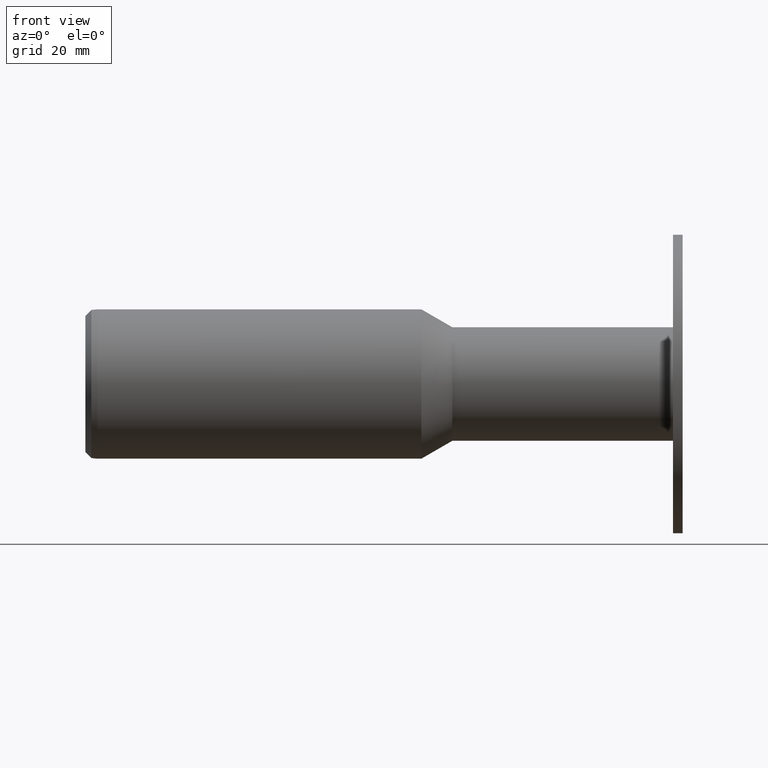
[diagram: clean part render]
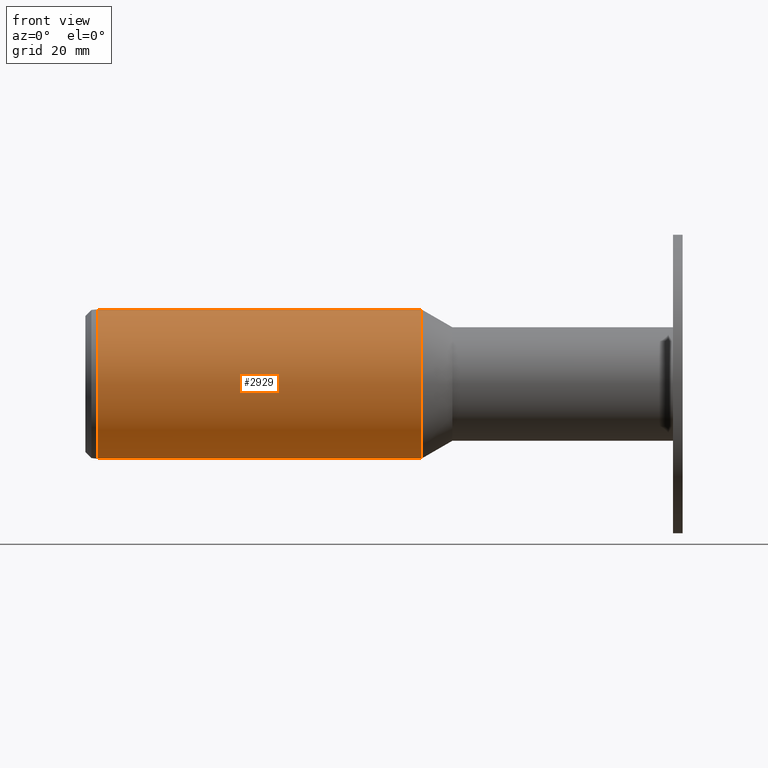
[diagram: same view with one face highlighted and labeled with its STEP entity id]
A machine part, front view. The second image highlights one B-rep face of the part: STEP entity #2929.
In plain terms, the highlighted cylindrical surface (partial cylindrical patch) has radius 12.5 mm, axis along (-1, -0, -0).
Its self-contained STEP definition (entity closure, byte-faithful):
#3 = DIRECTION ( 'NONE',  ( 0.0000000000000000000, 0.0000000000000000000, 1.000000000000000000 ) ) ;
#82 = VERTEX_POINT ( 'NONE', #3790 ) ;
#84 = CARTESIAN_POINT ( 'NONE',  ( -97.79994865999979936, 0.0000000000000000000, 0.0000000000000000000 ) ) ;
#97 = EDGE_LOOP ( 'NONE', ( #3057, #2271, #2938, #407 ) ) ;
#276 = EDGE_CURVE ( 'NONE', #4067, #3605, #2937, .T. ) ;
#407 = ORIENTED_EDGE ( 'NONE', *, *, #2866, .F. ) ;
#684 = DIRECTION ( 'NONE',  ( -1.000000000000000000, -0.0000000000000000000, -0.0000000000000000000 ) ) ;
#1074 = DIRECTION ( 'NONE',  ( -1.000000000000000000, -0.0000000000000000000, -0.0000000000000000000 ) ) ;
#1163 = DIRECTION ( 'NONE',  ( 0.0000000000000000000, -8.881784197001252323E-16, -1.000000000000000000 ) ) ;
#1169 = CARTESIAN_POINT ( 'NONE',  ( -97.79994865999979936, -1.061225583290346189E-14, -12.50000000000000000 ) ) ;
#1197 = EDGE_CURVE ( 'NONE', #4067, #82, #3822, .T. ) ;
#1259 = DIRECTION ( 'NONE',  ( 1.000000000000000000, -0.0000000000000000000, -0.0000000000000000000 ) ) ;
#1547 = AXIS2_PLACEMENT_3D ( 'NONE', #84, #1745, #1163 ) ;
#1644 = AXIS2_PLACEMENT_3D ( 'NONE', #1907, #1259, #3 ) ;
#1745 = DIRECTION ( 'NONE',  ( -1.000000000000000000, 0.0000000000000000000, 0.0000000000000000000 ) ) ;
#1786 = CIRCLE ( 'NONE', #1547, 12.50000000000000000 ) ;
#1825 = CARTESIAN_POINT ( 'NONE',  ( -43.54014103886468234, 0.0000000000000000000, 12.50000000000000178 ) ) ;
#1865 = EDGE_CURVE ( 'NONE', #82, #2485, #2519, .T. ) ;
#1907 = CARTESIAN_POINT ( 'NONE',  ( -43.54014103886468234, 0.0000000000000000000, 0.0000000000000000000 ) ) ;
#1917 = VECTOR ( 'NONE', #1970, 1000.000000000000000 ) ;
#1970 = DIRECTION ( 'NONE',  ( -1.000000000000000000, -0.0000000000000000000, -0.0000000000000000000 ) ) ;
#1993 = DIRECTION ( 'NONE',  ( 0.0000000000000000000, 0.0000000000000000000, 1.000000000000000000 ) ) ;
#2205 = CARTESIAN_POINT ( 'NONE',  ( -97.79994865999979936, -1.214306433183765282E-14, 12.50000000000000000 ) ) ;
#2271 = ORIENTED_EDGE ( 'NONE', *, *, #1197, .F. ) ;
#2485 = VERTEX_POINT ( 'NONE', #1169 ) ;
#2519 = LINE ( 'NONE', #2649, #4142 ) ;
#2649 = CARTESIAN_POINT ( 'NONE',  ( -29.79994865999999121, -1.061225583290346189E-14, -12.50000000000000000 ) ) ;
#2764 = FACE_OUTER_BOUND ( 'NONE', #97, .T. ) ;
#2866 = EDGE_CURVE ( 'NONE', #2485, #3605, #1786, .T. ) ;
#2929 = ADVANCED_FACE ( 'NONE', ( #2764 ), #3568, .T. ) ;
#2937 = LINE ( 'NONE', #3572, #1917 ) ;
#2938 = ORIENTED_EDGE ( 'NONE', *, *, #276, .T. ) ;
#3057 = ORIENTED_EDGE ( 'NONE', *, *, #1865, .F. ) ;
#3568 = CYLINDRICAL_SURFACE ( 'NONE', #3649, 12.50000000000000000 ) ;
#3572 = CARTESIAN_POINT ( 'NONE',  ( -29.79994865999999121, -1.214306433183765282E-14, 12.50000000000000000 ) ) ;
#3605 = VERTEX_POINT ( 'NONE', #2205 ) ;
#3649 = AXIS2_PLACEMENT_3D ( 'NONE', #3683, #1074, #1993 ) ;
#3683 = CARTESIAN_POINT ( 'NONE',  ( -29.79994865999999121, -1.214306433183765282E-14, 0.0000000000000000000 ) ) ;
#3790 = CARTESIAN_POINT ( 'NONE',  ( -43.54014103886468234, 1.530808498934191916E-15, -12.50000000000000178 ) ) ;
#3822 = CIRCLE ( 'NONE', #1644, 12.50000000000000000 ) ;
#4067 = VERTEX_POINT ( 'NONE', #1825 ) ;
#4142 = VECTOR ( 'NONE', #684, 1000.000000000000000 ) ;